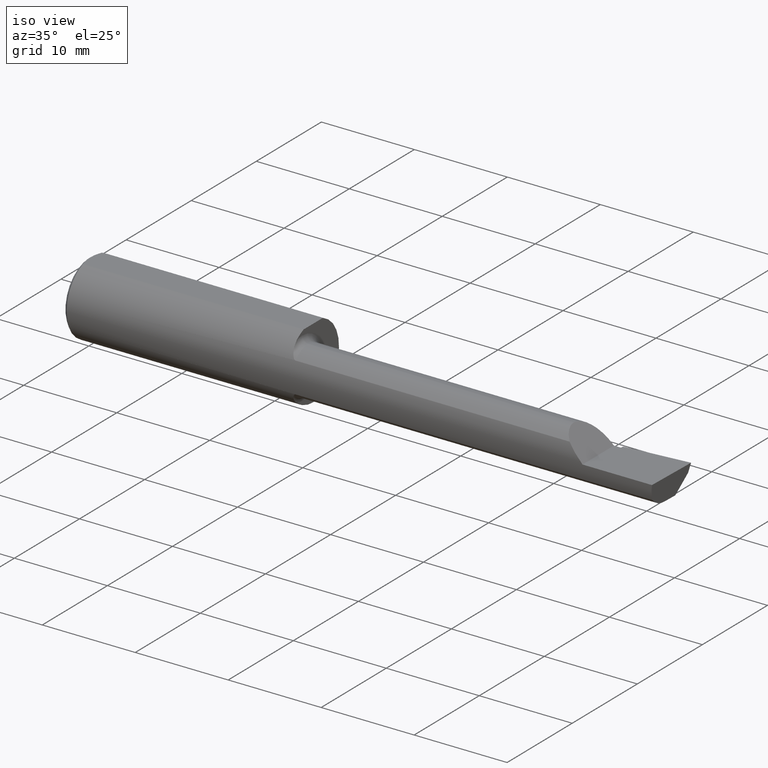
[diagram: clean part render]
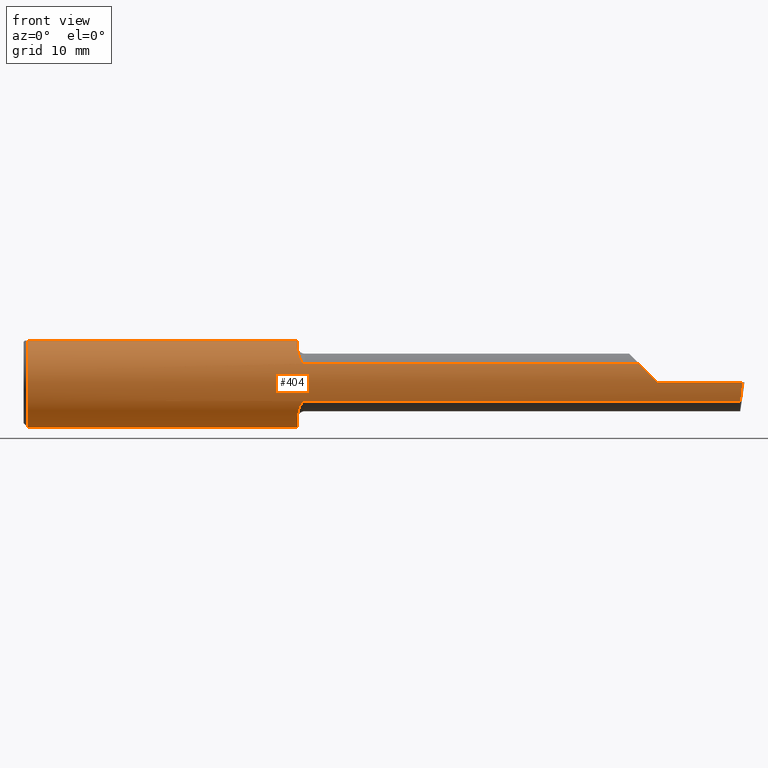
[diagram: tour spotlight — one face highlighted and labeled with its STEP entity id]
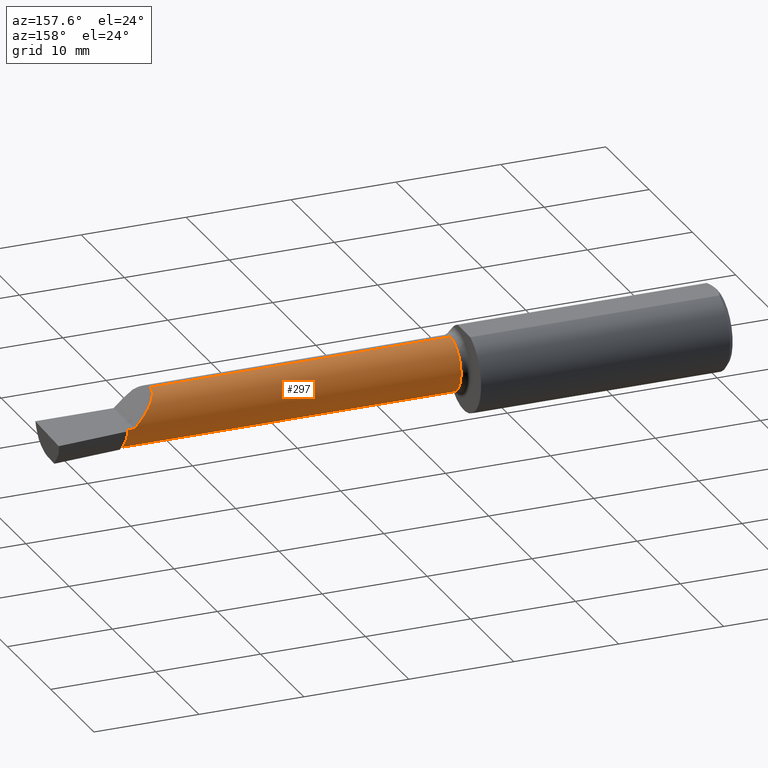
[diagram: tour spotlight — one face highlighted and labeled with its STEP entity id]
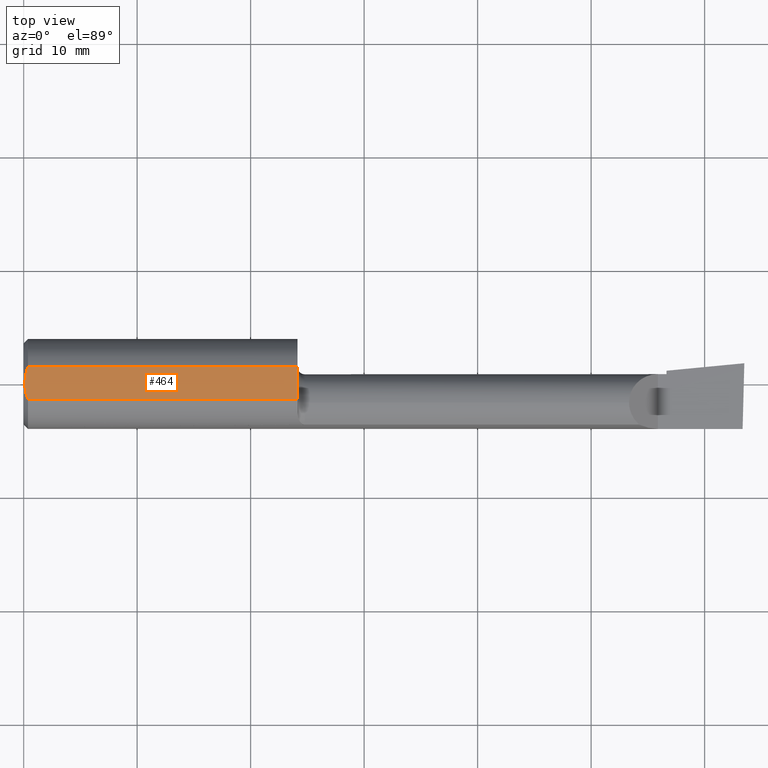
[diagram: tour spotlight — one face highlighted and labeled with its STEP entity id]
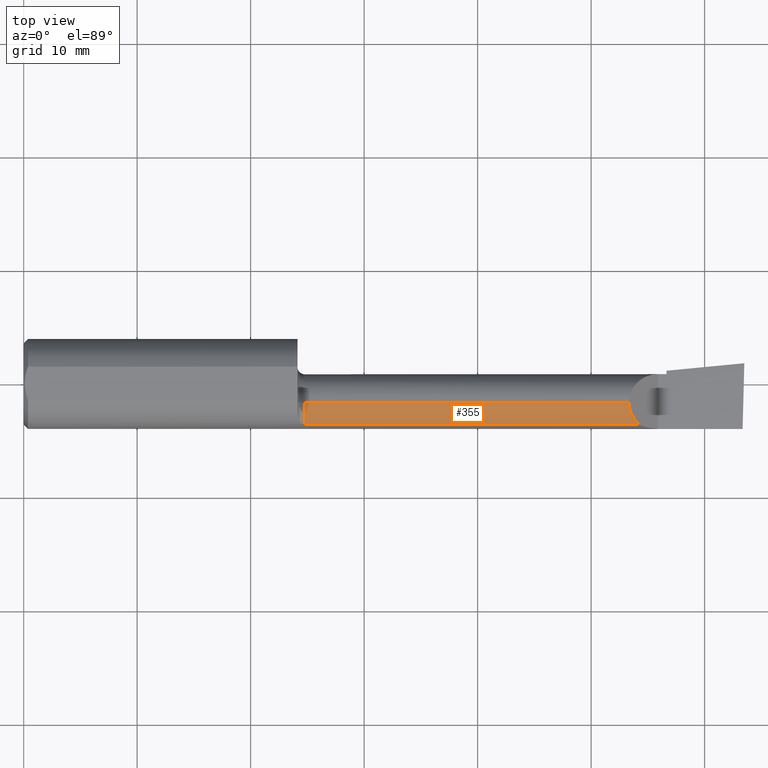
[diagram: tour spotlight — one face highlighted and labeled with its STEP entity id]
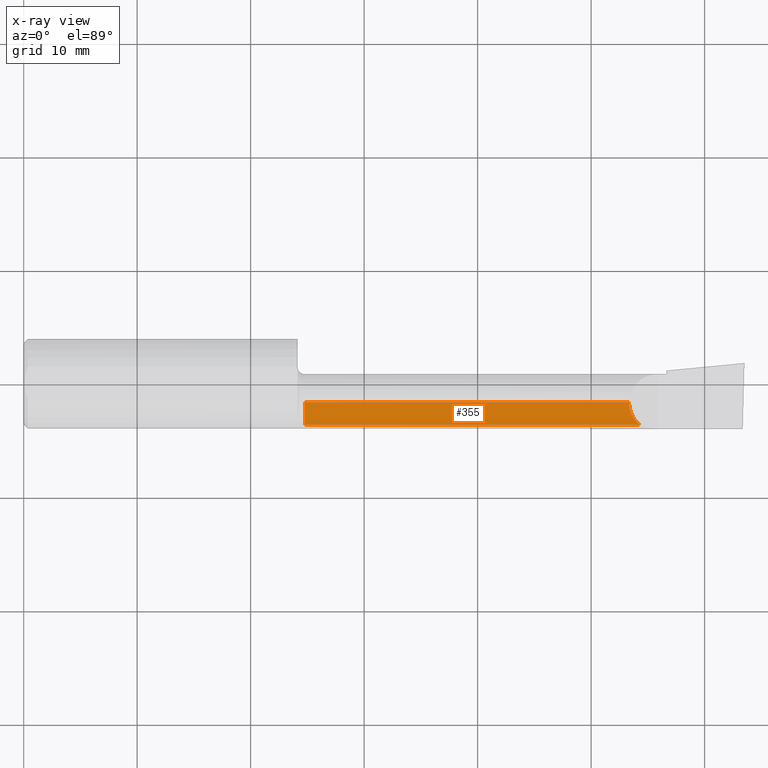
[diagram: x-ray of the same camera — body ghosted, this tour face saturated]
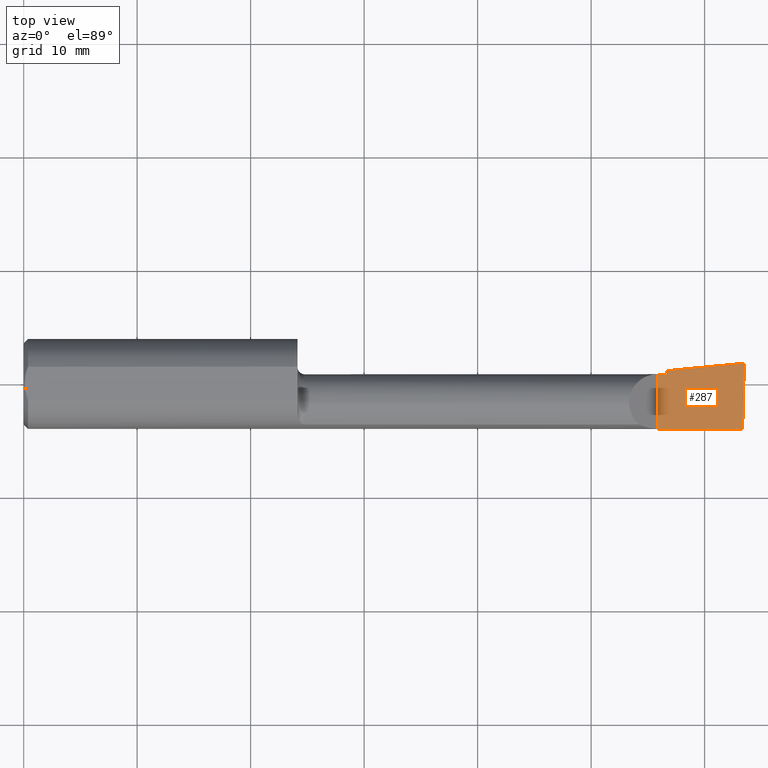
[diagram: tour spotlight — one face highlighted and labeled with its STEP entity id]
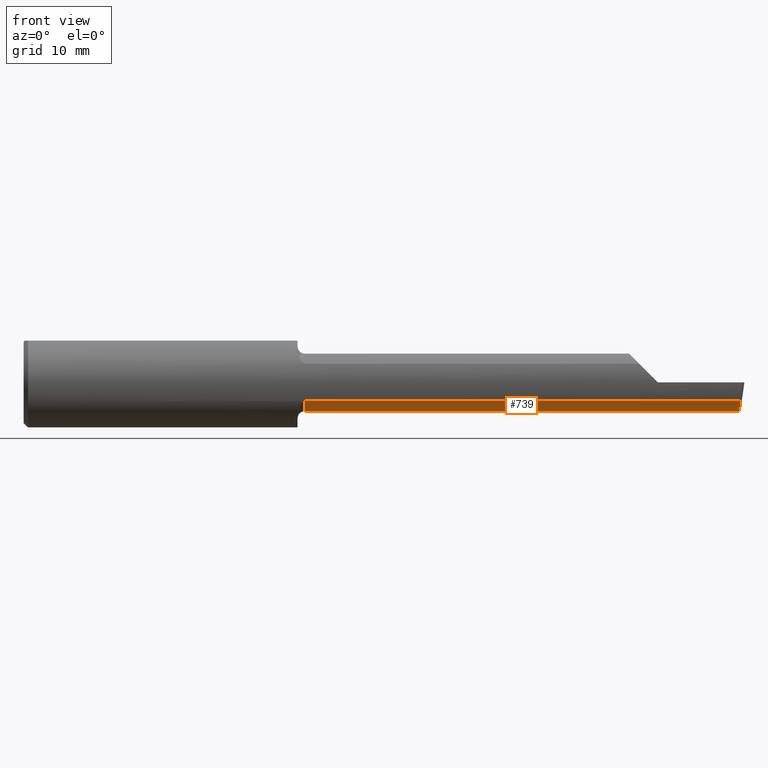
[diagram: tour spotlight — one face highlighted and labeled with its STEP entity id]
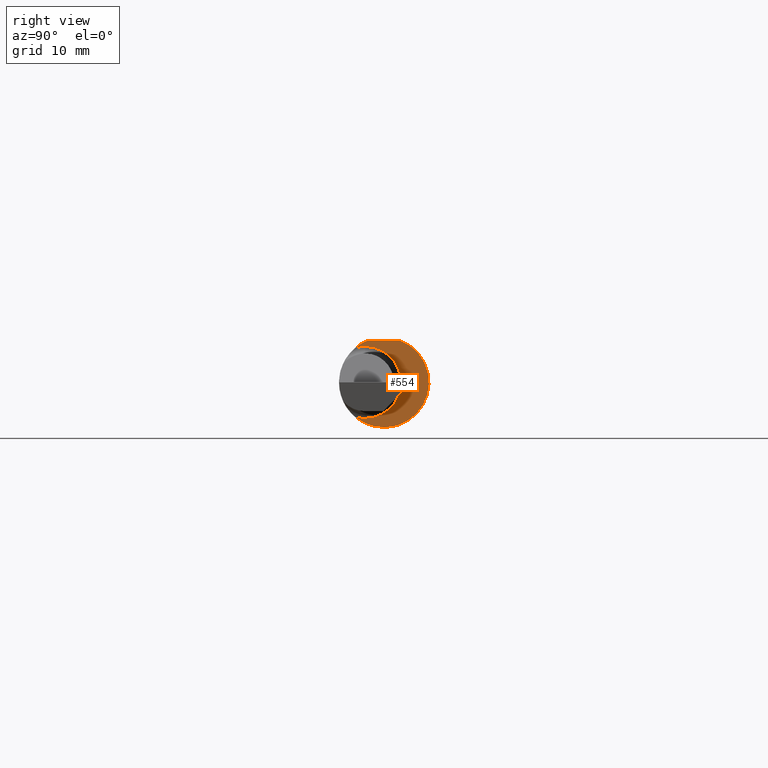
[diagram: tour spotlight — one face highlighted and labeled with its STEP entity id]
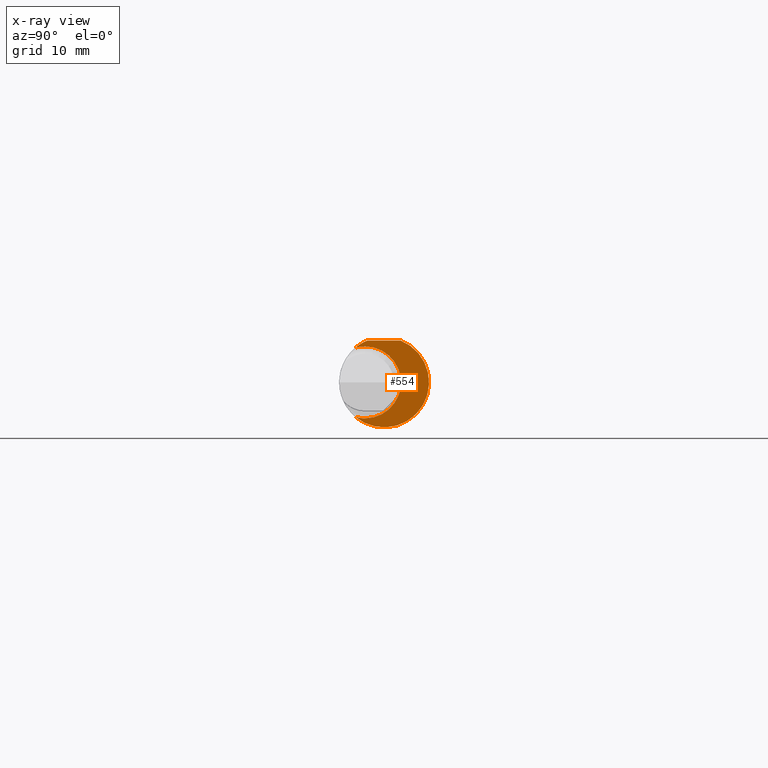
[diagram: x-ray of the same camera — body ghosted, this tour face saturated]
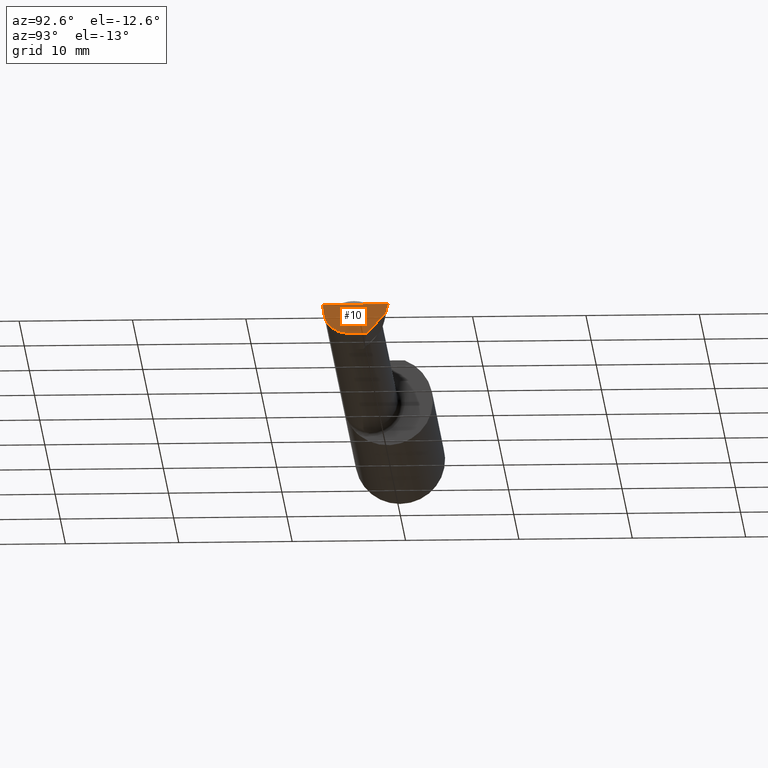
[diagram: tour spotlight — one face highlighted and labeled with its STEP entity id]
A machine part: a face-by-face anatomy tour. The part has 21 B-rep faces; the first image is the clean iso view, then the 8 largest visible faces are spotlighted one at a time (largest first), each with its STEP entity span.

Face 1 — front view, entity #404. In plain terms, the highlighted cylindrical surface (partial cylindrical patch) has radius 3.9649 mm, axis along (-1, -0, -0).
Definition (entity closure, byte-faithful):
#4 = CARTESIAN_POINT ( 'NONE',  ( 0.9717256991359958240, -0.1417275062431947175, -0.06543227863119793764 ) ) ;
#17 = ORIENTED_EDGE ( 'NONE', *, *, #89, .F. ) ;
#21 = CARTESIAN_POINT ( 'NONE',  ( 0.9586820903407829997, -0.1330572531291642768, -0.08183785561185233370 ) ) ;
#27 = CARTESIAN_POINT ( 'NONE',  ( 2.491270569402206814, -0.1560999999999999888, -0.02246288137099515872 ) ) ;
#29 = CARTESIAN_POINT ( 'NONE',  ( 2.486434241799652778, -0.1419939393939394223, -0.06484544066771577575 ) ) ;
#35 = EDGE_CURVE ( 'NONE', #301, #141, #157, .T. ) ;
#42 = CARTESIAN_POINT ( 'NONE',  ( 0.01499999999999999424, 0.000000000000000000, -0.1560999999999999888 ) ) ;
#46 = CIRCLE ( 'NONE', #651, 0.1560999999999999888 ) ;
#50 = EDGE_CURVE ( 'NONE', #660, #640, #114, .T. ) ;
#54 = CARTESIAN_POINT ( 'NONE',  ( 0.9520405068644911539, -0.1180407066556271450, 0.1023492120876694778 ) ) ;
#61 = CARTESIAN_POINT ( 'NONE',  ( 0.9749999999999999778, -0.1419939393939395333, -0.06484544066771551207 ) ) ;
#62 = DIRECTION ( 'NONE',  ( -1.000000000000000000, -0.000000000000000000, -0.000000000000000000 ) ) ;
#66 = EDGE_CURVE ( 'NONE', #488, #605, #568, .T. ) ;
#69 = LINE ( 'NONE', #702, #411 ) ;
#74 = LINE ( 'NONE', #580, #281 ) ;
#75 = CARTESIAN_POINT ( 'NONE',  ( 0.9749999999999999778, -0.1419939393939395333, -0.06484544066771551207 ) ) ;
#82 = CARTESIAN_POINT ( 'NONE',  ( 2.486434241799652778, -0.1419939393939394223, -0.06484544066771577575 ) ) ;
#89 = EDGE_CURVE ( 'NONE', #321, #622, #509, .T. ) ;
#94 = CYLINDRICAL_SURFACE ( 'NONE', #591, 0.1560999999999999888 ) ;
#101 = CARTESIAN_POINT ( 'NONE',  ( 0.9630170922746255080, -0.1374043365808048089, 0.07413505991998627087 ) ) ;
#102 = CARTESIAN_POINT ( 'NONE',  ( 1.602499999999999813, -0.1419939393939394223, -0.06484544066771577575 ) ) ;
#111 = CARTESIAN_POINT ( 'NONE',  ( 0.01499999999999999424, 0.000000000000000000, 0.000000000000000000 ) ) ;
#114 = LINE ( 'NONE', #218, #635 ) ;
#121 = CARTESIAN_POINT ( 'NONE',  ( 0.9733182172575656210, -0.1419939393939396166, -0.06484544066771549820 ) ) ;
#122 = ORIENTED_EDGE ( 'NONE', *, *, #50, .F. ) ;
#123 = CARTESIAN_POINT ( 'NONE',  ( 0.01499999999999999424, -0.05756040305626774350, 0.1451000000000000068 ) ) ;
#128 = DIRECTION ( 'NONE',  ( -1.000000000000000000, -0.000000000000000000, -0.000000000000000000 ) ) ;
#138 = VERTEX_POINT ( 'NONE', #273 ) ;
#141 = VERTEX_POINT ( 'NONE', #619 ) ;
#143 = EDGE_CURVE ( 'NONE', #176, #640, #514, .T. ) ;
#144 = CARTESIAN_POINT ( 'NONE',  ( 2.494029609882220111, -0.1561000000000000165, 6.889038570631858091E-17 ) ) ;
#152 = CARTESIAN_POINT ( 'NONE',  ( 0.000000000000000000, 0.000000000000000000, 0.000000000000000000 ) ) ;
#157 = LINE ( 'NONE', #730, #662 ) ;
#160 = CARTESIAN_POINT ( 'NONE',  ( 0.9678084285893293615, -0.1404263024719113739, 0.06818548243543413878 ) ) ;
#162 = CARTESIAN_POINT ( 'NONE',  ( 0.9586659046592507227, -0.1330436853938333774, 0.08186319721956611395 ) ) ;
#164 = CARTESIAN_POINT ( 'NONE',  ( 0.9499999999999998446, -0.1044500923568691536, 0.1161894481365068482 ) ) ;
#166 = CARTESIAN_POINT ( 'NONE',  ( 2.200000000000000178, -0.1560999999999999888, 9.797174393178826150E-17 ) ) ;
#171 = DIRECTION ( 'NONE',  ( 0.000000000000000000, 0.000000000000000000, -1.000000000000000000 ) ) ;
#176 = VERTEX_POINT ( 'NONE', #578 ) ;
#183 = CARTESIAN_POINT ( 'NONE',  ( 0.9565900107095250959, -0.1296703571699489577, -0.08713627291423967081 ) ) ;
#204 = VERTEX_POINT ( 'NONE', #351 ) ;
#207 = ORIENTED_EDGE ( 'NONE', *, *, #676, .T. ) ;
#214 = EDGE_CURVE ( 'NONE', #301, #488, #590, .T. ) ;
#218 = CARTESIAN_POINT ( 'NONE',  ( 1.602499999999999813, -0.1419939393939394223, 0.06484544066771577575 ) ) ;
#219 = CARTESIAN_POINT ( 'NONE',  ( 0.9689884841392603088, -0.1409410548628160786, 0.06710952210203005586 ) ) ;
#220 = CARTESIAN_POINT ( 'NONE',  ( 2.135154559332283597, -0.1419939393939393946, 0.06484544066771577575 ) ) ;
#222 = CARTESIAN_POINT ( 'NONE',  ( 0.9499999999999999556, 0.000000000000000000, 0.000000000000000000 ) ) ;
#229 = CARTESIAN_POINT ( 'NONE',  ( 0.9689870864409554363, -0.1409404987250980901, -0.06711069163632675527 ) ) ;
#231 = ORIENTED_EDGE ( 'NONE', *, *, #410, .F. ) ;
#242 = AXIS2_PLACEMENT_3D ( 'NONE', #111, #560, #285 ) ;
#257 = ORIENTED_EDGE ( 'NONE', *, *, #502, .F. ) ;
#264 = EDGE_CURVE ( 'NONE', #622, #634, #457, .T. ) ;
#267 = CARTESIAN_POINT ( 'NONE',  ( 0.9646665162895929901, -0.1387430930441310994, 0.07158177069671466108 ) ) ;
#273 = CARTESIAN_POINT ( 'NONE',  ( 0.9499999999999999556, -0.09941818181818204425, 0.1203463132961159199 ) ) ;
#275 = DIRECTION ( 'NONE',  ( 1.000000000000000000, 0.000000000000000000, 0.000000000000000000 ) ) ;
#281 = VECTOR ( 'NONE', #128, 39.37007874015748143 ) ;
#285 = DIRECTION ( 'NONE',  ( 0.000000000000000000, 0.000000000000000000, 1.000000000000000000 ) ) ;
#292 = DIRECTION ( 'NONE',  ( 0.000000000000000000, 0.000000000000000000, 1.000000000000000000 ) ) ;
#294 = DIRECTION ( 'NONE',  ( -1.000000000000000000, -0.000000000000000000, -0.000000000000000000 ) ) ;
#301 = VERTEX_POINT ( 'NONE', #549 ) ;
#308 = CARTESIAN_POINT ( 'NONE',  ( 2.488699611492194208, -0.1513252362624135372, -0.04441242967472189968 ) ) ;
#309 = ORIENTED_EDGE ( 'NONE', *, *, #264, .F. ) ;
#321 = VERTEX_POINT ( 'NONE', #29 ) ;
#338 = CARTESIAN_POINT ( 'NONE',  ( 0.9717277934124318728, -0.1417279534125324980, 0.06543130843947118913 ) ) ;
#341 = VECTOR ( 'NONE', #678, 39.37007874015748143 ) ;
#350 = DIRECTION ( 'NONE',  ( 1.000000000000000000, 0.000000000000000000, 0.000000000000000000 ) ) ;
#351 = CARTESIAN_POINT ( 'NONE',  ( 0.9499999999999999556, -0.05756040305626776432, 0.1451000000000000068 ) ) ;
#358 = CARTESIAN_POINT ( 'NONE',  ( 0.9499999999999999556, -0.09941818181818204425, -0.1203463132961159199 ) ) ;
#359 = EDGE_CURVE ( 'NONE', #321, #413, #596, .T. ) ;
#390 = CARTESIAN_POINT ( 'NONE',  ( 0.9504151557116665705, -0.1091772789608306815, 0.1117554983051641249 ) ) ;
#394 = CARTESIAN_POINT ( 'NONE',  ( 2.177537118629004453, -0.1560999999999999333, 0.02246288137099517260 ) ) ;
#404 = ADVANCED_FACE ( 'NONE', ( #652 ), #94, .T. ) ;
#410 = EDGE_CURVE ( 'NONE', #634, #141, #46, .T. ) ;
#411 = VECTOR ( 'NONE', #294, 39.37007874015748143 ) ;
#413 = VERTEX_POINT ( 'NONE', #144 ) ;
#415 = CARTESIAN_POINT ( 'NONE',  ( 0.9678037441589156797, -0.1404244429940955385, -0.06818941713933145132 ) ) ;
#419 = CIRCLE ( 'NONE', #701, 0.1560999999999999888 ) ;
#426 = DIRECTION ( 'NONE',  ( 0.000000000000000000, 0.000000000000000000, -1.000000000000000000 ) ) ;
#435 = CARTESIAN_POINT ( 'NONE',  ( 2.494029609882220111, -0.1561000000000000165, 6.889038570631858091E-17 ) ) ;
#442 = CARTESIAN_POINT ( 'NONE',  ( 0.9532624648106053922, -0.1222000088982463373, 0.09733625715976082504 ) ) ;
#457 = B_SPLINE_CURVE_WITH_KNOTS ( 'NONE', 3,
 ( #75, #121, #4, #229, #415, #690, #697, #21, #183, #462, #516, #584, #693, #358 ),
 .UNSPECIFIED., .F., .F.,
 ( 4, 2, 2, 2, 2, 2, 4 ),
 ( 1.961289441104657001E-07, 0.0001258819157032009788, 0.0002515677024622915269, 0.0005029392759804715389, 0.001005682423016836333, 0.001508425570053200911, 0.002011168717089565922 ),
 .UNSPECIFIED. ) ;
#462 = CARTESIAN_POINT ( 'NONE',  ( 0.9532640331608028816, -0.1222037927935209767, -0.09733121088759337514 ) ) ;
#471 = ORIENTED_EDGE ( 'NONE', *, *, #35, .T. ) ;
#475 = ORIENTED_EDGE ( 'NONE', *, *, #66, .F. ) ;
#483 = CARTESIAN_POINT ( 'NONE',  ( 0.9499999999999999556, 0.000000000000000000, 0.000000000000000000 ) ) ;
#488 = VERTEX_POINT ( 'NONE', #42 ) ;
#494 = ORIENTED_EDGE ( 'NONE', *, *, #718, .T. ) ;
#502 = EDGE_CURVE ( 'NONE', #138, #660, #725, .T. ) ;
#509 = LINE ( 'NONE', #102, #341 ) ;
#514 =( BOUNDED_CURVE ( )  B_SPLINE_CURVE ( 3, ( #166, #394, #621, #220 ),
 .UNSPECIFIED., .F., .T. ) 
 B_SPLINE_CURVE_WITH_KNOTS ( ( 4, 4 ),
 ( 4.712388980384689674, 5.140782042693055054 ),
 .UNSPECIFIED. ) 
 CURVE ( )  GEOMETRIC_REPRESENTATION_ITEM ( )  RATIONAL_B_SPLINE_CURVE ( ( 1.000000000000000000, 0.9847649979006014576, 0.9847649979006014576, 1.000000000000000000 ) ) 
 REPRESENTATION_ITEM ( '' )  );
#516 = CARTESIAN_POINT ( 'NONE',  ( 0.9520639438348809103, -0.1181307192064764700, -0.1022448908112565669 ) ) ;
#522 = EDGE_LOOP ( 'NONE', ( #17, #553, #207, #704, #122, #257, #665, #494, #475, #649, #471, #231, #309 ) ) ;
#549 = CARTESIAN_POINT ( 'NONE',  ( 0.01499999999999999424, 0.05756040305626779902, 0.1450999999999999512 ) ) ;
#553 = ORIENTED_EDGE ( 'NONE', *, *, #359, .T. ) ;
#560 = DIRECTION ( 'NONE',  ( -1.000000000000000000, -0.000000000000000000, -0.000000000000000000 ) ) ;
#561 = CARTESIAN_POINT ( 'NONE',  ( 0.9565906554296058628, -0.1296720675120679456, 0.08713405786343407511 ) ) ;
#568 = CIRCLE ( 'NONE', #242, 0.1560999999999999888 ) ;
#573 = CARTESIAN_POINT ( 'NONE',  ( 0.9499999999999999556, -0.09941818181818204425, -0.1203463132961159199 ) ) ;
#578 = CARTESIAN_POINT ( 'NONE',  ( 2.200000000000000178, -0.1560999999999999888, 9.797174393178826150E-17 ) ) ;
#580 = CARTESIAN_POINT ( 'NONE',  ( 3.121792066109142165E-32, -0.1560999999999999333, 3.155924005931204823E-16 ) ) ;
#584 = CARTESIAN_POINT ( 'NONE',  ( 0.9504281348370819948, -0.1092850169809858607, -0.1116497630123360202 ) ) ;
#590 = CIRCLE ( 'NONE', #686, 0.1560999999999999888 ) ;
#591 = AXIS2_PLACEMENT_3D ( 'NONE', #152, #595, #663 ) ;
#595 = DIRECTION ( 'NONE',  ( -1.000000000000000000, -0.000000000000000000, -0.000000000000000000 ) ) ;
#596 =( BOUNDED_CURVE ( )  B_SPLINE_CURVE ( 3, ( #82, #308, #27, #435 ),
 .UNSPECIFIED., .F., .T. ) 
 B_SPLINE_CURVE_WITH_KNOTS ( ( 4, 4 ),
 ( 0.9323538202067687131, 1.360746882515134759 ),
 .UNSPECIFIED. ) 
 CURVE ( )  GEOMETRIC_REPRESENTATION_ITEM ( )  RATIONAL_B_SPLINE_CURVE ( ( 1.000000000000000000, 0.9847649979006014576, 0.9847649979006014576, 1.000000000000000000 ) ) 
 REPRESENTATION_ITEM ( '' )  );
#605 = VERTEX_POINT ( 'NONE', #123 ) ;
#615 = CARTESIAN_POINT ( 'NONE',  ( 0.9733282532545943777, -0.1419939393940949923, 0.06484544066737527035 ) ) ;
#619 = CARTESIAN_POINT ( 'NONE',  ( 0.9499999999999999556, 0.05756040305626777820, 0.1450999999999999512 ) ) ;
#621 = CARTESIAN_POINT ( 'NONE',  ( 2.155587570325277369, -0.1513252362624134817, 0.04441242967472187192 ) ) ;
#622 = VERTEX_POINT ( 'NONE', #61 ) ;
#623 = CARTESIAN_POINT ( 'NONE',  ( 0.9499999999999999556, -0.09941818181818204425, 0.1203463132961159199 ) ) ;
#624 = DIRECTION ( 'NONE',  ( 1.000000000000000000, 0.000000000000000000, 0.000000000000000000 ) ) ;
#634 = VERTEX_POINT ( 'NONE', #573 ) ;
#635 = VECTOR ( 'NONE', #275, 39.37007874015748143 ) ;
#637 = CARTESIAN_POINT ( 'NONE',  ( 0.9749999999999999778, -0.1419939393939394223, 0.06484544066771566473 ) ) ;
#638 = EDGE_CURVE ( 'NONE', #204, #138, #419, .T. ) ;
#640 = VERTEX_POINT ( 'NONE', #689 ) ;
#649 = ORIENTED_EDGE ( 'NONE', *, *, #214, .F. ) ;
#651 = AXIS2_PLACEMENT_3D ( 'NONE', #483, #711, #426 ) ;
#652 = FACE_OUTER_BOUND ( 'NONE', #522, .T. ) ;
#660 = VERTEX_POINT ( 'NONE', #637 ) ;
#662 = VECTOR ( 'NONE', #624, 39.37007874015748143 ) ;
#663 = DIRECTION ( 'NONE',  ( 0.000000000000000000, 0.000000000000000000, 1.000000000000000000 ) ) ;
#665 = ORIENTED_EDGE ( 'NONE', *, *, #638, .F. ) ;
#670 = CARTESIAN_POINT ( 'NONE',  ( 0.9749999999999999778, -0.1419939393939394223, 0.06484544066771566473 ) ) ;
#676 = EDGE_CURVE ( 'NONE', #413, #176, #74, .T. ) ;
#678 = DIRECTION ( 'NONE',  ( -1.000000000000000000, -0.000000000000000000, -0.000000000000000000 ) ) ;
#685 = CARTESIAN_POINT ( 'NONE',  ( 0.01499999999999999424, 0.000000000000000000, 0.000000000000000000 ) ) ;
#686 = AXIS2_PLACEMENT_3D ( 'NONE', #685, #62, #292 ) ;
#689 = CARTESIAN_POINT ( 'NONE',  ( 2.135154559332283597, -0.1419939393939393946, 0.06484544066771577575 ) ) ;
#690 = CARTESIAN_POINT ( 'NONE',  ( 0.9646509797163482780, -0.1387334617349067767, -0.07160083655282331594 ) ) ;
#693 = CARTESIAN_POINT ( 'NONE',  ( 0.9500000000000000666, -0.1044772303701487354, -0.1161670294028995382 ) ) ;
#697 = CARTESIAN_POINT ( 'NONE',  ( 0.9629965619026877865, -0.1373850824029526907, -0.07416982835688724907 ) ) ;
#701 = AXIS2_PLACEMENT_3D ( 'NONE', #222, #350, #171 ) ;
#702 = CARTESIAN_POINT ( 'NONE',  ( 0.000000000000000000, -0.05756040305626774350, 0.1451000000000000068 ) ) ;
#704 = ORIENTED_EDGE ( 'NONE', *, *, #143, .T. ) ;
#711 = DIRECTION ( 'NONE',  ( 1.000000000000000000, 0.000000000000000000, 0.000000000000000000 ) ) ;
#718 = EDGE_CURVE ( 'NONE', #204, #605, #69, .T. ) ;
#725 = B_SPLINE_CURVE_WITH_KNOTS ( 'NONE', 3,
 ( #623, #164, #390, #54, #442, #561, #162, #101, #267, #160, #219, #338, #615, #670 ),
 .UNSPECIFIED., .F., .F.,
 ( 4, 2, 2, 2, 2, 2, 4 ),
 ( 0.0001856976868807124587, 0.0006805519038525597968, 0.001175406120824407270, 0.001670260337796254527, 0.001917687446282178264, 0.002041401000525140241, 0.002165114554768101784 ),
 .UNSPECIFIED. ) ;
#730 = CARTESIAN_POINT ( 'NONE',  ( 0.000000000000000000, 0.05756040305626779902, 0.1450999999999999512 ) ) ;

Face 2 — auxiliary view, entity #297. In plain terms, the highlighted cylindrical surface (edge-blend (fillet) strip) has radius 2.5375 mm, axis along (-1, -0, -0).
Definition (entity closure, byte-faithful):
#18 = AXIS2_PLACEMENT_3D ( 'NONE', #97, #707, #608 ) ;
#45 = VERTEX_POINT ( 'NONE', #333 ) ;
#49 = CARTESIAN_POINT ( 'NONE',  ( 0.000000000000000000, -0.06599999999999998923, -0.09989999999999993330 ) ) ;
#96 = VERTEX_POINT ( 'NONE', #278 ) ;
#97 = CARTESIAN_POINT ( 'NONE',  ( 0.000000000000000000, -0.06599999999999998923, 0.000000000000000000 ) ) ;
#105 = DIRECTION ( 'NONE',  ( -1.000000000000000000, -0.000000000000000000, -0.000000000000000000 ) ) ;
#116 = EDGE_CURVE ( 'NONE', #96, #379, #447, .T. ) ;
#119 = CIRCLE ( 'NONE', #441, 0.09990000000000000269 ) ;
#126 = CARTESIAN_POINT ( 'NONE',  ( 2.229999999999999982, -0.06599999999999998923, 0.000000000000000000 ) ) ;
#131 = CARTESIAN_POINT ( 'NONE',  ( 2.229999999999999982, 0.03390000000000001346, 3.155924005931208275E-16 ) ) ;
#165 = EDGE_CURVE ( 'NONE', #682, #379, #468, .T. ) ;
#177 = EDGE_CURVE ( 'NONE', #45, #271, #408, .T. ) ;
#178 = CARTESIAN_POINT ( 'NONE',  ( 2.229999999999999982, -0.06599999999999998923, -0.09990000000000000269 ) ) ;
#189 = VERTEX_POINT ( 'NONE', #512 ) ;
#194 = CARTESIAN_POINT ( 'NONE',  ( 2.229999999999999982, 0.02031953758082113634, -0.05028864118101816771 ) ) ;
#201 = ORIENTED_EDGE ( 'NONE', *, *, #177, .T. ) ;
#210 = VECTOR ( 'NONE', #105, 39.37007874015748143 ) ;
#263 = EDGE_LOOP ( 'NONE', ( #579, #306, #492, #407, #201, #363, #403, #296 ) ) ;
#271 = VERTEX_POINT ( 'NONE', #412 ) ;
#278 = CARTESIAN_POINT ( 'NONE',  ( 2.229999999999999982, -0.01311981690363728248, -0.08475668844224119869 ) ) ;
#282 = CARTESIAN_POINT ( 'NONE',  ( 2.229999999999999982, -0.06599999999999998923, 0.000000000000000000 ) ) ;
#289 = CARTESIAN_POINT ( 'NONE',  ( 2.100099999999998523, -0.007479934881072251331, 0.09989999999999994718 ) ) ;
#296 = ORIENTED_EDGE ( 'NONE', *, *, #116, .F. ) ;
#297 = ADVANCED_FACE ( 'NONE', ( #312 ), #536, .T. ) ;
#306 = ORIENTED_EDGE ( 'NONE', *, *, #527, .T. ) ;
#312 = FACE_OUTER_BOUND ( 'NONE', #263, .T. ) ;
#315 = CARTESIAN_POINT ( 'NONE',  ( 2.229999999999999982, -0.06599999999999998923, 0.000000000000000000 ) ) ;
#318 = VECTOR ( 'NONE', #696, 39.37007874015748143 ) ;
#330 = CIRCLE ( 'NONE', #456, 0.09989999999999985003 ) ;
#332 = CARTESIAN_POINT ( 'NONE',  ( 0.9749999999999999778, -0.06599999999999997535, -0.09989999999999985003 ) ) ;
#333 = CARTESIAN_POINT ( 'NONE',  ( 2.100099999999998968, -0.06599999999999998923, 0.09989999999999993330 ) ) ;
#345 = EDGE_CURVE ( 'NONE', #189, #533, #330, .T. ) ;
#356 = CARTESIAN_POINT ( 'NONE',  ( 2.100099999999998968, -0.06599999999999998923, 0.09989999999999993330 ) ) ;
#363 = ORIENTED_EDGE ( 'NONE', *, *, #687, .T. ) ;
#379 = VERTEX_POINT ( 'NONE', #194 ) ;
#387 = DIRECTION ( 'NONE',  ( -1.000000000000000000, -0.000000000000000000, -0.000000000000000000 ) ) ;
#403 = ORIENTED_EDGE ( 'NONE', *, *, #165, .T. ) ;
#407 = ORIENTED_EDGE ( 'NONE', *, *, #496, .F. ) ;
#408 =( BOUNDED_CURVE ( )  B_SPLINE_CURVE ( 3, ( #356, #289, #642, #524 ),
 .UNSPECIFIED., .F., .T. ) 
 B_SPLINE_CURVE_WITH_KNOTS ( ( 4, 4 ),
 ( 0.000000000000000000, 1.570796326794896114 ),
 .UNSPECIFIED. ) 
 CURVE ( )  GEOMETRIC_REPRESENTATION_ITEM ( )  RATIONAL_B_SPLINE_CURVE ( ( 1.000000000000000000, 0.8047378541243650485, 0.8047378541243650485, 1.000000000000000000 ) ) 
 REPRESENTATION_ITEM ( '' )  );
#412 = CARTESIAN_POINT ( 'NONE',  ( 2.200000000000000178, 0.03389999999999990937, 9.797174393178826150E-17 ) ) ;
#430 = EDGE_CURVE ( 'NONE', #96, #644, #119, .T. ) ;
#431 = DIRECTION ( 'NONE',  ( 0.000000000000000000, 0.000000000000000000, 1.000000000000000000 ) ) ;
#441 = AXIS2_PLACEMENT_3D ( 'NONE', #315, #541, #431 ) ;
#447 = CIRCLE ( 'NONE', #540, 0.09989999999999993330 ) ;
#450 = LINE ( 'NONE', #49, #210 ) ;
#456 = AXIS2_PLACEMENT_3D ( 'NONE', #532, #592, #656 ) ;
#468 = CIRCLE ( 'NONE', #526, 0.09990000000000000269 ) ;
#492 = ORIENTED_EDGE ( 'NONE', *, *, #345, .F. ) ;
#495 = LINE ( 'NONE', #677, #572 ) ;
#496 = EDGE_CURVE ( 'NONE', #45, #189, #495, .T. ) ;
#501 = DIRECTION ( 'NONE',  ( 1.000000000000000000, 0.000000000000000000, 0.000000000000000000 ) ) ;
#512 = CARTESIAN_POINT ( 'NONE',  ( 0.9749999999999999778, -0.06599999999999998923, 0.09989999999999985003 ) ) ;
#515 = LINE ( 'NONE', #641, #318 ) ;
#524 = CARTESIAN_POINT ( 'NONE',  ( 2.200000000000000178, 0.03389999999999990937, 9.797174393178826150E-17 ) ) ;
#526 = AXIS2_PLACEMENT_3D ( 'NONE', #126, #633, #588 ) ;
#527 = EDGE_CURVE ( 'NONE', #644, #533, #450, .T. ) ;
#532 = CARTESIAN_POINT ( 'NONE',  ( 0.9749999999999999778, -0.06599999999999998923, 0.000000000000000000 ) ) ;
#533 = VERTEX_POINT ( 'NONE', #332 ) ;
#536 = CYLINDRICAL_SURFACE ( 'NONE', #18, 0.09989999999999993330 ) ;
#540 = AXIS2_PLACEMENT_3D ( 'NONE', #282, #501, #681 ) ;
#541 = DIRECTION ( 'NONE',  ( -1.000000000000000000, -0.000000000000000000, -0.000000000000000000 ) ) ;
#572 = VECTOR ( 'NONE', #387, 39.37007874015748143 ) ;
#579 = ORIENTED_EDGE ( 'NONE', *, *, #430, .T. ) ;
#588 = DIRECTION ( 'NONE',  ( 0.000000000000000000, 0.000000000000000000, 1.000000000000000000 ) ) ;
#592 = DIRECTION ( 'NONE',  ( -1.000000000000000000, -0.000000000000000000, -0.000000000000000000 ) ) ;
#608 = DIRECTION ( 'NONE',  ( 0.000000000000000000, 0.000000000000000000, 1.000000000000000000 ) ) ;
#633 = DIRECTION ( 'NONE',  ( -1.000000000000000000, -0.000000000000000000, -0.000000000000000000 ) ) ;
#641 = CARTESIAN_POINT ( 'NONE',  ( 3.121792066109142165E-32, 0.03389999999999993019, 3.155924005931204823E-16 ) ) ;
#642 = CARTESIAN_POINT ( 'NONE',  ( 2.141479934881071578, 0.03389999999999989549, 0.05852006511892780122 ) ) ;
#644 = VERTEX_POINT ( 'NONE', #178 ) ;
#656 = DIRECTION ( 'NONE',  ( 0.000000000000000000, 0.000000000000000000, 1.000000000000000000 ) ) ;
#677 = CARTESIAN_POINT ( 'NONE',  ( 0.000000000000000000, -0.06599999999999998923, 0.09989999999999993330 ) ) ;
#681 = DIRECTION ( 'NONE',  ( 0.000000000000000000, 0.000000000000000000, 1.000000000000000000 ) ) ;
#682 = VERTEX_POINT ( 'NONE', #131 ) ;
#687 = EDGE_CURVE ( 'NONE', #271, #682, #515, .T. ) ;
#696 = DIRECTION ( 'NONE',  ( 1.000000000000000000, 0.000000000000000000, 0.000000000000000000 ) ) ;
#707 = DIRECTION ( 'NONE',  ( -1.000000000000000000, -0.000000000000000000, -0.000000000000000000 ) ) ;

Face 3 — top view, entity #464. In plain terms, the highlighted planar face has unit normal (0, -0, -1).
Definition (entity closure, byte-faithful):
#1 = VECTOR ( 'NONE', #458, 39.37007874015748143 ) ;
#6 = LINE ( 'NONE', #12, #1 ) ;
#8 = CARTESIAN_POINT ( 'NONE',  ( 0.004000000000000238608, 1.884449684559922719E-17, 0.1450999999999999790 ) ) ;
#12 = CARTESIAN_POINT ( 'NONE',  ( 0.9499999999999999556, 0.2061000000000000332, 0.1450999999999999512 ) ) ;
#35 = EDGE_CURVE ( 'NONE', #301, #141, #157, .T. ) ;
#36 = PLANE ( 'NONE',  #669 ) ;
#53 = CARTESIAN_POINT ( 'NONE',  ( 0.01499999999999999424, 0.05756040305626779902, 0.1450999999999999512 ) ) ;
#69 = LINE ( 'NONE', #702, #411 ) ;
#71 = EDGE_CURVE ( 'NONE', #244, #301, #531, .T. ) ;
#123 = CARTESIAN_POINT ( 'NONE',  ( 0.01499999999999999424, -0.05756040305626774350, 0.1451000000000000068 ) ) ;
#141 = VERTEX_POINT ( 'NONE', #619 ) ;
#155 = CARTESIAN_POINT ( 'NONE',  ( 0.004000000000000188301, -0.009851916903761191377, 0.1450999999999999512 ) ) ;
#157 = LINE ( 'NONE', #730, #662 ) ;
#167 = CARTESIAN_POINT ( 'NONE',  ( 0.01161840624095555018, -0.04838974479540033430, 0.1451000000000000345 ) ) ;
#199 = ORIENTED_EDGE ( 'NONE', *, *, #718, .F. ) ;
#204 = VERTEX_POINT ( 'NONE', #351 ) ;
#205 = CARTESIAN_POINT ( 'NONE',  ( 0.008818052469297050708, -0.03886761757380372689, 0.1451000000000000068 ) ) ;
#244 = VERTEX_POINT ( 'NONE', #8 ) ;
#259 = CARTESIAN_POINT ( 'NONE',  ( 2.500000000000000000, 0.2061000000000000332, 0.1450999999999999512 ) ) ;
#261 = B_SPLINE_CURVE_WITH_KNOTS ( 'NONE', 3,
 ( #680, #167, #205, #445, #155, #674 ),
 .UNSPECIFIED., .F., .F.,
 ( 4, 2, 4 ),
 ( 0.001402484879066372495, 0.002145844412013350570, 0.002889203944960327779 ),
 .UNSPECIFIED. ) ;
#268 = ORIENTED_EDGE ( 'NONE', *, *, #577, .F. ) ;
#274 = DIRECTION ( 'NONE',  ( 0.000000000000000000, -1.656870447394628111E-16, -1.000000000000000000 ) ) ;
#294 = DIRECTION ( 'NONE',  ( -1.000000000000000000, -0.000000000000000000, -0.000000000000000000 ) ) ;
#301 = VERTEX_POINT ( 'NONE', #549 ) ;
#349 = ORIENTED_EDGE ( 'NONE', *, *, #628, .F. ) ;
#351 = CARTESIAN_POINT ( 'NONE',  ( 0.9499999999999999556, -0.05756040305626776432, 0.1451000000000000068 ) ) ;
#411 = VECTOR ( 'NONE', #294, 39.37007874015748143 ) ;
#445 = CARTESIAN_POINT ( 'NONE',  ( 0.005011318927233133005, -0.01959047621504276041, 0.1450999999999999790 ) ) ;
#446 = CARTESIAN_POINT ( 'NONE',  ( 0.008823987512428459190, 0.03887788046871686748, 0.1450999999999999790 ) ) ;
#458 = DIRECTION ( 'NONE',  ( 0.000000000000000000, -1.000000000000000000, 1.656870447394628111E-16 ) ) ;
#464 = ADVANCED_FACE ( 'NONE', ( #546 ), #36, .F. ) ;
#497 = CARTESIAN_POINT ( 'NONE',  ( 0.01158831187866387301, 0.04830813087846569376, 0.1450999999999999512 ) ) ;
#506 = ORIENTED_EDGE ( 'NONE', *, *, #71, .F. ) ;
#531 = B_SPLINE_CURVE_WITH_KNOTS ( 'NONE', 3,
 ( #562, #740, #613, #446, #497, #53 ),
 .UNSPECIFIED., .F., .F.,
 ( 4, 2, 4 ),
 ( 0.002889203944960327779, 0.003632851267233511670, 0.004376498589506695562 ),
 .UNSPECIFIED. ) ;
#546 = FACE_OUTER_BOUND ( 'NONE', #724, .T. ) ;
#549 = CARTESIAN_POINT ( 'NONE',  ( 0.01499999999999999424, 0.05756040305626779902, 0.1450999999999999512 ) ) ;
#555 = DIRECTION ( 'NONE',  ( 0.000000000000000000, 1.000000000000000000, -1.656870447394628111E-16 ) ) ;
#562 = CARTESIAN_POINT ( 'NONE',  ( 0.004000000000000238608, 1.884449684559922719E-17, 0.1450999999999999790 ) ) ;
#577 = EDGE_CURVE ( 'NONE', #605, #244, #261, .T. ) ;
#605 = VERTEX_POINT ( 'NONE', #123 ) ;
#613 = CARTESIAN_POINT ( 'NONE',  ( 0.005030132703184950031, 0.01970541148932063169, 0.1451000000000000068 ) ) ;
#619 = CARTESIAN_POINT ( 'NONE',  ( 0.9499999999999999556, 0.05756040305626777820, 0.1450999999999999512 ) ) ;
#624 = DIRECTION ( 'NONE',  ( 1.000000000000000000, 0.000000000000000000, 0.000000000000000000 ) ) ;
#628 = EDGE_CURVE ( 'NONE', #141, #204, #6, .T. ) ;
#662 = VECTOR ( 'NONE', #624, 39.37007874015748143 ) ;
#669 = AXIS2_PLACEMENT_3D ( 'NONE', #259, #274, #555 ) ;
#674 = CARTESIAN_POINT ( 'NONE',  ( 0.004000000000000238608, 1.884449684559922719E-17, 0.1450999999999999790 ) ) ;
#680 = CARTESIAN_POINT ( 'NONE',  ( 0.01499999999999999424, -0.05756040305626774350, 0.1451000000000000068 ) ) ;
#702 = CARTESIAN_POINT ( 'NONE',  ( 0.000000000000000000, -0.05756040305626774350, 0.1451000000000000068 ) ) ;
#712 = ORIENTED_EDGE ( 'NONE', *, *, #35, .F. ) ;
#718 = EDGE_CURVE ( 'NONE', #204, #605, #69, .T. ) ;
#724 = EDGE_LOOP ( 'NONE', ( #349, #712, #506, #268, #199 ) ) ;
#730 = CARTESIAN_POINT ( 'NONE',  ( 0.000000000000000000, 0.05756040305626779902, 0.1450999999999999512 ) ) ;
#740 = CARTESIAN_POINT ( 'NONE',  ( 0.004000000000000188301, 0.009855731042683129120, 0.1450999999999999790 ) ) ;

Face 4 — top view, entity #355. An x-ray twin of the same camera follows (body ghosted, this face saturated) — the face is partly hidden behind the body. In plain terms, the highlighted cylindrical surface (edge-blend (fillet) strip) has radius 2.5375 mm, axis along (-1, -0, -0).
Definition (entity closure, byte-faithful):
#45 = VERTEX_POINT ( 'NONE', #333 ) ;
#50 = EDGE_CURVE ( 'NONE', #660, #640, #114, .T. ) ;
#55 = AXIS2_PLACEMENT_3D ( 'NONE', #213, #733, #616 ) ;
#57 = EDGE_CURVE ( 'NONE', #660, #189, #378, .T. ) ;
#76 = ORIENTED_EDGE ( 'NONE', *, *, #50, .T. ) ;
#88 = CARTESIAN_POINT ( 'NONE',  ( 0.000000000000000000, -0.06599999999999998923, 0.000000000000000000 ) ) ;
#114 = LINE ( 'NONE', #218, #635 ) ;
#148 = ORIENTED_EDGE ( 'NONE', *, *, #57, .F. ) ;
#189 = VERTEX_POINT ( 'NONE', #512 ) ;
#190 = FACE_OUTER_BOUND ( 'NONE', #344, .T. ) ;
#213 = CARTESIAN_POINT ( 'NONE',  ( 0.9749999999999999778, -0.06599999999999998923, 0.000000000000000000 ) ) ;
#218 = CARTESIAN_POINT ( 'NONE',  ( 1.602499999999999813, -0.1419939393939394223, 0.06484544066771577575 ) ) ;
#234 = ORIENTED_EDGE ( 'NONE', *, *, #496, .T. ) ;
#235 =( BOUNDED_CURVE ( )  B_SPLINE_CURVE ( 3, ( #251, #487, #491, #255 ),
 .UNSPECIFIED., .F., .T. ) 
 B_SPLINE_CURVE_WITH_KNOTS ( ( 4, 4 ),
 ( 5.418794317430680074, 6.283185307179586232 ),
 .UNSPECIFIED. ) 
 CURVE ( )  GEOMETRIC_REPRESENTATION_ITEM ( )  RATIONAL_B_SPLINE_CURVE ( ( 1.000000000000000000, 0.9386988813357770578, 0.9386988813357770578, 1.000000000000000000 ) ) 
 REPRESENTATION_ITEM ( '' )  );
#251 = CARTESIAN_POINT ( 'NONE',  ( 2.135154559332283597, -0.1419939393939393946, 0.06484544066771577575 ) ) ;
#255 = CARTESIAN_POINT ( 'NONE',  ( 2.100099999999998968, -0.06599999999999998923, 0.09989999999999993330 ) ) ;
#275 = DIRECTION ( 'NONE',  ( 1.000000000000000000, 0.000000000000000000, 0.000000000000000000 ) ) ;
#333 = CARTESIAN_POINT ( 'NONE',  ( 2.100099999999998968, -0.06599999999999998923, 0.09989999999999993330 ) ) ;
#344 = EDGE_LOOP ( 'NONE', ( #437, #234, #148, #76 ) ) ;
#355 = ADVANCED_FACE ( 'NONE', ( #190 ), #370, .T. ) ;
#370 = CYLINDRICAL_SURFACE ( 'NONE', #688, 0.09989999999999993330 ) ;
#377 = EDGE_CURVE ( 'NONE', #640, #45, #235, .T. ) ;
#378 = CIRCLE ( 'NONE', #55, 0.09989999999999985003 ) ;
#387 = DIRECTION ( 'NONE',  ( -1.000000000000000000, -0.000000000000000000, -0.000000000000000000 ) ) ;
#418 = DIRECTION ( 'NONE',  ( -1.000000000000000000, -0.000000000000000000, -0.000000000000000000 ) ) ;
#437 = ORIENTED_EDGE ( 'NONE', *, *, #377, .T. ) ;
#478 = DIRECTION ( 'NONE',  ( 0.000000000000000000, 0.000000000000000000, 1.000000000000000000 ) ) ;
#487 = CARTESIAN_POINT ( 'NONE',  ( 2.112547924827749668, -0.1227037540429563728, 0.08745207517224930227 ) ) ;
#491 = CARTESIAN_POINT ( 'NONE',  ( 2.100099999999998968, -0.09571819601686555601, 0.09989999999999997493 ) ) ;
#495 = LINE ( 'NONE', #677, #572 ) ;
#496 = EDGE_CURVE ( 'NONE', #45, #189, #495, .T. ) ;
#512 = CARTESIAN_POINT ( 'NONE',  ( 0.9749999999999999778, -0.06599999999999998923, 0.09989999999999985003 ) ) ;
#572 = VECTOR ( 'NONE', #387, 39.37007874015748143 ) ;
#616 = DIRECTION ( 'NONE',  ( 0.000000000000000000, 0.000000000000000000, 1.000000000000000000 ) ) ;
#635 = VECTOR ( 'NONE', #275, 39.37007874015748143 ) ;
#637 = CARTESIAN_POINT ( 'NONE',  ( 0.9749999999999999778, -0.1419939393939394223, 0.06484544066771566473 ) ) ;
#640 = VERTEX_POINT ( 'NONE', #689 ) ;
#660 = VERTEX_POINT ( 'NONE', #637 ) ;
#677 = CARTESIAN_POINT ( 'NONE',  ( 0.000000000000000000, -0.06599999999999998923, 0.09989999999999993330 ) ) ;
#688 = AXIS2_PLACEMENT_3D ( 'NONE', #88, #418, #478 ) ;
#689 = CARTESIAN_POINT ( 'NONE',  ( 2.135154559332283597, -0.1419939393939393946, 0.06484544066771577575 ) ) ;
#733 = DIRECTION ( 'NONE',  ( -1.000000000000000000, -0.000000000000000000, -0.000000000000000000 ) ) ;

Face 5 — top view, entity #287. In plain terms, the highlighted planar face has unit normal (-0, 0, -1).
Definition (entity closure, byte-faithful):
#48 = CARTESIAN_POINT ( 'NONE',  ( 2.491576527842699562, -0.2497794236187493022, 6.912943690626119343E-17 ) ) ;
#67 = CARTESIAN_POINT ( 'NONE',  ( 2.200000000000000178, -0.2500000000000000555, 9.797174393178826150E-17 ) ) ;
#68 = ORIENTED_EDGE ( 'NONE', *, *, #397, .F. ) ;
#74 = LINE ( 'NONE', #580, #281 ) ;
#90 = VERTEX_POINT ( 'NONE', #388 ) ;
#106 = LINE ( 'NONE', #48, #316 ) ;
#128 = DIRECTION ( 'NONE',  ( -1.000000000000000000, -0.000000000000000000, -0.000000000000000000 ) ) ;
#131 = CARTESIAN_POINT ( 'NONE',  ( 2.229999999999999982, 0.03390000000000001346, 3.155924005931208275E-16 ) ) ;
#132 = LINE ( 'NONE', #67, #699 ) ;
#134 = EDGE_CURVE ( 'NONE', #413, #432, #106, .T. ) ;
#144 = CARTESIAN_POINT ( 'NONE',  ( 2.494029609882220111, -0.1561000000000000165, 6.889038570631858091E-17 ) ) ;
#176 = VERTEX_POINT ( 'NONE', #578 ) ;
#180 = ORIENTED_EDGE ( 'NONE', *, *, #676, .F. ) ;
#188 = FACE_OUTER_BOUND ( 'NONE', #195, .T. ) ;
#195 = EDGE_LOOP ( 'NONE', ( #180, #420, #68, #593, #352, #489 ) ) ;
#200 = CARTESIAN_POINT ( 'NONE',  ( 2.229999999999999982, -0.2500000000000000555, 9.500418952277011559E-17 ) ) ;
#203 = DIRECTION ( 'NONE',  ( -9.891848030060559526E-17, 0.000000000000000000, -1.000000000000000000 ) ) ;
#230 = EDGE_CURVE ( 'NONE', #176, #271, #132, .T. ) ;
#246 = PLANE ( 'NONE',  #479 ) ;
#270 = VECTOR ( 'NONE', #380, 39.37007874015748143 ) ;
#271 = VERTEX_POINT ( 'NONE', #412 ) ;
#281 = VECTOR ( 'NONE', #128, 39.37007874015748143 ) ;
#287 = ADVANCED_FACE ( 'NONE', ( #188 ), #246, .F. ) ;
#316 = VECTOR ( 'NONE', #499, 39.37007874015748854 ) ;
#318 = VECTOR ( 'NONE', #696, 39.37007874015748143 ) ;
#320 = LINE ( 'NONE', #200, #348 ) ;
#348 = VECTOR ( 'NONE', #600, 39.37007874015748143 ) ;
#352 = ORIENTED_EDGE ( 'NONE', *, *, #687, .F. ) ;
#373 = LINE ( 'NONE', #715, #270 ) ;
#380 = DIRECTION ( 'NONE',  ( 0.9953961983671787417, 0.09584575252022466130, -9.846307923948147589E-17 ) ) ;
#388 = CARTESIAN_POINT ( 'NONE',  ( 2.229999999999999982, 0.04590195698666847679, 3.180041805124806541E-16 ) ) ;
#397 = EDGE_CURVE ( 'NONE', #90, #432, #373, .T. ) ;
#412 = CARTESIAN_POINT ( 'NONE',  ( 2.200000000000000178, 0.03389999999999990937, 9.797174393178826150E-17 ) ) ;
#413 = VERTEX_POINT ( 'NONE', #144 ) ;
#420 = ORIENTED_EDGE ( 'NONE', *, *, #134, .T. ) ;
#421 = EDGE_CURVE ( 'NONE', #682, #90, #320, .T. ) ;
#432 = VERTEX_POINT ( 'NONE', #658 ) ;
#474 = DIRECTION ( 'NONE',  ( -1.000000000000000000, 0.000000000000000000, 9.891848030060559526E-17 ) ) ;
#479 = AXIS2_PLACEMENT_3D ( 'NONE', #648, #203, #474 ) ;
#489 = ORIENTED_EDGE ( 'NONE', *, *, #230, .F. ) ;
#499 = DIRECTION ( 'NONE',  ( 0.02617694830780364565, 0.9996573249755590362, -2.550926060768432332E-18 ) ) ;
#515 = LINE ( 'NONE', #641, #318 ) ;
#578 = CARTESIAN_POINT ( 'NONE',  ( 2.200000000000000178, -0.1560999999999999888, 9.797174393178826150E-17 ) ) ;
#580 = CARTESIAN_POINT ( 'NONE',  ( 3.121792066109142165E-32, -0.1560999999999999333, 3.155924005931204823E-16 ) ) ;
#593 = ORIENTED_EDGE ( 'NONE', *, *, #421, .F. ) ;
#600 = DIRECTION ( 'NONE',  ( 0.000000000000000000, 1.000000000000000000, 0.000000000000000000 ) ) ;
#630 = DIRECTION ( 'NONE',  ( -0.000000000000000000, 1.000000000000000000, -0.000000000000000000 ) ) ;
#641 = CARTESIAN_POINT ( 'NONE',  ( 3.121792066109142165E-32, 0.03389999999999993019, 3.155924005931204823E-16 ) ) ;
#648 = CARTESIAN_POINT ( 'NONE',  ( 2.500000000000000000, -0.2500000000000000555, 6.829619984160658046E-17 ) ) ;
#658 = CARTESIAN_POINT ( 'NONE',  ( 2.499999999999987121, 0.07190000000001785241, 6.190650342595689678E-14 ) ) ;
#676 = EDGE_CURVE ( 'NONE', #413, #176, #74, .T. ) ;
#682 = VERTEX_POINT ( 'NONE', #131 ) ;
#687 = EDGE_CURVE ( 'NONE', #271, #682, #515, .T. ) ;
#696 = DIRECTION ( 'NONE',  ( 1.000000000000000000, 0.000000000000000000, 0.000000000000000000 ) ) ;
#699 = VECTOR ( 'NONE', #630, 39.37007874015748143 ) ;
#715 = CARTESIAN_POINT ( 'NONE',  ( 1.067853742648958049, -0.06599999999999998923, 2.099619311869716025E-16 ) ) ;

Face 6 — front view, entity #739. In plain terms, the highlighted cylindrical surface (edge-blend (fillet) strip) has radius 2.5375 mm, axis along (-1, -0, -0).
Definition (entity closure, byte-faithful):
#29 = CARTESIAN_POINT ( 'NONE',  ( 2.486434241799652778, -0.1419939393939394223, -0.06484544066771577575 ) ) ;
#34 = VERTEX_POINT ( 'NONE', #51 ) ;
#49 = CARTESIAN_POINT ( 'NONE',  ( 0.000000000000000000, -0.06599999999999998923, -0.09989999999999993330 ) ) ;
#51 = CARTESIAN_POINT ( 'NONE',  ( 2.484118579027821294, -0.06599999999999998923, -0.09990000000000000269 ) ) ;
#61 = CARTESIAN_POINT ( 'NONE',  ( 0.9749999999999999778, -0.1419939393939395333, -0.06484544066771551207 ) ) ;
#64 = ORIENTED_EDGE ( 'NONE', *, *, #672, .F. ) ;
#73 = AXIS2_PLACEMENT_3D ( 'NONE', #319, #197, #303 ) ;
#79 = ORIENTED_EDGE ( 'NONE', *, *, #527, .F. ) ;
#89 = EDGE_CURVE ( 'NONE', #321, #622, #509, .T. ) ;
#95 = ORIENTED_EDGE ( 'NONE', *, *, #722, .F. ) ;
#102 = CARTESIAN_POINT ( 'NONE',  ( 1.602499999999999813, -0.1419939393939394223, -0.06484544066771577575 ) ) ;
#105 = DIRECTION ( 'NONE',  ( -1.000000000000000000, -0.000000000000000000, -0.000000000000000000 ) ) ;
#108 = CIRCLE ( 'NONE', #520, 0.09989999999999985003 ) ;
#120 = CARTESIAN_POINT ( 'NONE',  ( 2.500000000000000000, -0.06599999999999998923, -0.09990000000000000269 ) ) ;
#178 = CARTESIAN_POINT ( 'NONE',  ( 2.229999999999999982, -0.06599999999999998923, -0.09990000000000000269 ) ) ;
#196 = EDGE_CURVE ( 'NONE', #321, #34, #564, .T. ) ;
#197 = DIRECTION ( 'NONE',  ( -1.000000000000000000, -0.000000000000000000, -0.000000000000000000 ) ) ;
#210 = VECTOR ( 'NONE', #105, 39.37007874015748143 ) ;
#227 = DIRECTION ( 'NONE',  ( -1.000000000000000000, 5.691349986800549142E-18, -0.000000000000000000 ) ) ;
#233 = CARTESIAN_POINT ( 'NONE',  ( 2.483340380677748538, -0.09571819601686558376, -0.09989999999999997493 ) ) ;
#245 = CYLINDRICAL_SURFACE ( 'NONE', #73, 0.09989999999999993330 ) ;
#262 = ORIENTED_EDGE ( 'NONE', *, *, #89, .T. ) ;
#303 = DIRECTION ( 'NONE',  ( 0.000000000000000000, 0.000000000000000000, 1.000000000000000000 ) ) ;
#319 = CARTESIAN_POINT ( 'NONE',  ( 0.000000000000000000, -0.06599999999999998923, 0.000000000000000000 ) ) ;
#321 = VERTEX_POINT ( 'NONE', #29 ) ;
#332 = CARTESIAN_POINT ( 'NONE',  ( 0.9749999999999999778, -0.06599999999999997535, -0.09989999999999985003 ) ) ;
#341 = VECTOR ( 'NONE', #678, 39.37007874015748143 ) ;
#354 = LINE ( 'NONE', #120, #636 ) ;
#368 = EDGE_LOOP ( 'NONE', ( #79, #64, #631, #262, #95 ) ) ;
#402 = CARTESIAN_POINT ( 'NONE',  ( 2.484118579027821294, -0.06599999999999998923, -0.09990000000000000269 ) ) ;
#414 = DIRECTION ( 'NONE',  ( -1.000000000000000000, -0.000000000000000000, -0.000000000000000000 ) ) ;
#450 = LINE ( 'NONE', #49, #210 ) ;
#466 = CARTESIAN_POINT ( 'NONE',  ( 2.484162675884399096, -0.1227037540429563867, -0.08745207517224923288 ) ) ;
#508 = FACE_OUTER_BOUND ( 'NONE', #368, .T. ) ;
#509 = LINE ( 'NONE', #102, #341 ) ;
#520 = AXIS2_PLACEMENT_3D ( 'NONE', #684, #414, #569 ) ;
#527 = EDGE_CURVE ( 'NONE', #644, #533, #450, .T. ) ;
#529 = CARTESIAN_POINT ( 'NONE',  ( 2.486434241799652778, -0.1419939393939394223, -0.06484544066771577575 ) ) ;
#533 = VERTEX_POINT ( 'NONE', #332 ) ;
#564 =( BOUNDED_CURVE ( )  B_SPLINE_CURVE ( 3, ( #529, #466, #233, #402 ),
 .UNSPECIFIED., .F., .T. ) 
 B_SPLINE_CURVE_WITH_KNOTS ( ( 4, 4 ),
 ( 5.628843761710442095, 6.493234751459348253 ),
 .UNSPECIFIED. ) 
 CURVE ( )  GEOMETRIC_REPRESENTATION_ITEM ( )  RATIONAL_B_SPLINE_CURVE ( ( 1.000000000000000000, 0.9386988813357770578, 0.9386988813357770578, 1.000000000000000000 ) ) 
 REPRESENTATION_ITEM ( '' )  );
#569 = DIRECTION ( 'NONE',  ( 0.000000000000000000, 0.000000000000000000, 1.000000000000000000 ) ) ;
#622 = VERTEX_POINT ( 'NONE', #61 ) ;
#631 = ORIENTED_EDGE ( 'NONE', *, *, #196, .F. ) ;
#636 = VECTOR ( 'NONE', #227, 39.37007874015748143 ) ;
#644 = VERTEX_POINT ( 'NONE', #178 ) ;
#672 = EDGE_CURVE ( 'NONE', #34, #644, #354, .T. ) ;
#678 = DIRECTION ( 'NONE',  ( -1.000000000000000000, -0.000000000000000000, -0.000000000000000000 ) ) ;
#684 = CARTESIAN_POINT ( 'NONE',  ( 0.9749999999999999778, -0.06599999999999998923, 0.000000000000000000 ) ) ;
#722 = EDGE_CURVE ( 'NONE', #533, #622, #108, .T. ) ;
#739 = ADVANCED_FACE ( 'NONE', ( #508 ), #245, .T. ) ;

Face 7 — right view, entity #554. An x-ray twin of the same camera follows (body ghosted, this face saturated) — the face is partly hidden behind the body. In plain terms, the highlighted planar face has unit normal (1, 0, 0).
Definition (entity closure, byte-faithful):
#1 = VECTOR ( 'NONE', #458, 39.37007874015748143 ) ;
#6 = LINE ( 'NONE', #12, #1 ) ;
#12 = CARTESIAN_POINT ( 'NONE',  ( 0.9499999999999999556, 0.2061000000000000332, 0.1450999999999999512 ) ) ;
#25 = AXIS2_PLACEMENT_3D ( 'NONE', #147, #376, #603 ) ;
#33 = DIRECTION ( 'NONE',  ( 0.000000000000000000, 0.000000000000000000, 1.000000000000000000 ) ) ;
#46 = CIRCLE ( 'NONE', #651, 0.1560999999999999888 ) ;
#60 = CIRCLE ( 'NONE', #25, 0.1248999999999998584 ) ;
#72 = EDGE_LOOP ( 'NONE', ( #609, #691, #86, #221, #538, #153 ) ) ;
#83 = VERTEX_POINT ( 'NONE', #396 ) ;
#85 = CARTESIAN_POINT ( 'NONE',  ( 0.9499999999999999556, -0.06599999999999998923, 0.000000000000000000 ) ) ;
#86 = ORIENTED_EDGE ( 'NONE', *, *, #638, .T. ) ;
#107 = CARTESIAN_POINT ( 'NONE',  ( 0.9499999999999999556, -0.06599999999999997535, -0.1248999999999998584 ) ) ;
#138 = VERTEX_POINT ( 'NONE', #273 ) ;
#140 = DIRECTION ( 'NONE',  ( -1.000000000000000000, -0.000000000000000000, -0.000000000000000000 ) ) ;
#141 = VERTEX_POINT ( 'NONE', #619 ) ;
#147 = CARTESIAN_POINT ( 'NONE',  ( 0.9499999999999999556, -0.06599999999999998923, 0.000000000000000000 ) ) ;
#153 = ORIENTED_EDGE ( 'NONE', *, *, #311, .T. ) ;
#171 = DIRECTION ( 'NONE',  ( 0.000000000000000000, 0.000000000000000000, -1.000000000000000000 ) ) ;
#204 = VERTEX_POINT ( 'NONE', #351 ) ;
#221 = ORIENTED_EDGE ( 'NONE', *, *, #369, .T. ) ;
#222 = CARTESIAN_POINT ( 'NONE',  ( 0.9499999999999999556, 0.000000000000000000, 0.000000000000000000 ) ) ;
#228 = AXIS2_PLACEMENT_3D ( 'NONE', #85, #249, #366 ) ;
#249 = DIRECTION ( 'NONE',  ( -1.000000000000000000, -0.000000000000000000, -0.000000000000000000 ) ) ;
#273 = CARTESIAN_POINT ( 'NONE',  ( 0.9499999999999999556, -0.09941818181818204425, 0.1203463132961159199 ) ) ;
#288 = AXIS2_PLACEMENT_3D ( 'NONE', #393, #723, #620 ) ;
#311 = EDGE_CURVE ( 'NONE', #467, #634, #367, .T. ) ;
#323 = CARTESIAN_POINT ( 'NONE',  ( 0.9499999999999999556, -0.06599999999999998923, 0.000000000000000000 ) ) ;
#350 = DIRECTION ( 'NONE',  ( 1.000000000000000000, 0.000000000000000000, 0.000000000000000000 ) ) ;
#351 = CARTESIAN_POINT ( 'NONE',  ( 0.9499999999999999556, -0.05756040305626776432, 0.1451000000000000068 ) ) ;
#366 = DIRECTION ( 'NONE',  ( 0.000000000000000000, 0.000000000000000000, 1.000000000000000000 ) ) ;
#367 = CIRCLE ( 'NONE', #714, 0.1248999999999998584 ) ;
#369 = EDGE_CURVE ( 'NONE', #138, #83, #557, .T. ) ;
#376 = DIRECTION ( 'NONE',  ( -1.000000000000000000, -0.000000000000000000, -0.000000000000000000 ) ) ;
#393 = CARTESIAN_POINT ( 'NONE',  ( 0.9499999999999999556, 0.05889999999999986219, 0.000000000000000000 ) ) ;
#396 = CARTESIAN_POINT ( 'NONE',  ( 0.9499999999999999556, -0.06599999999999998923, 0.1248999999999998584 ) ) ;
#410 = EDGE_CURVE ( 'NONE', #634, #141, #46, .T. ) ;
#419 = CIRCLE ( 'NONE', #701, 0.1560999999999999888 ) ;
#426 = DIRECTION ( 'NONE',  ( 0.000000000000000000, 0.000000000000000000, -1.000000000000000000 ) ) ;
#439 = PLANE ( 'NONE',  #288 ) ;
#444 = EDGE_CURVE ( 'NONE', #83, #467, #60, .T. ) ;
#458 = DIRECTION ( 'NONE',  ( 0.000000000000000000, -1.000000000000000000, 1.656870447394628111E-16 ) ) ;
#467 = VERTEX_POINT ( 'NONE', #107 ) ;
#483 = CARTESIAN_POINT ( 'NONE',  ( 0.9499999999999999556, 0.000000000000000000, 0.000000000000000000 ) ) ;
#538 = ORIENTED_EDGE ( 'NONE', *, *, #444, .T. ) ;
#554 = ADVANCED_FACE ( 'NONE', ( #732 ), #439, .T. ) ;
#557 = CIRCLE ( 'NONE', #228, 0.1248999999999998584 ) ;
#573 = CARTESIAN_POINT ( 'NONE',  ( 0.9499999999999999556, -0.09941818181818204425, -0.1203463132961159199 ) ) ;
#603 = DIRECTION ( 'NONE',  ( 0.000000000000000000, 0.000000000000000000, 1.000000000000000000 ) ) ;
#609 = ORIENTED_EDGE ( 'NONE', *, *, #410, .T. ) ;
#619 = CARTESIAN_POINT ( 'NONE',  ( 0.9499999999999999556, 0.05756040305626777820, 0.1450999999999999512 ) ) ;
#620 = DIRECTION ( 'NONE',  ( 0.000000000000000000, 0.000000000000000000, -1.000000000000000000 ) ) ;
#628 = EDGE_CURVE ( 'NONE', #141, #204, #6, .T. ) ;
#634 = VERTEX_POINT ( 'NONE', #573 ) ;
#638 = EDGE_CURVE ( 'NONE', #204, #138, #419, .T. ) ;
#651 = AXIS2_PLACEMENT_3D ( 'NONE', #483, #711, #426 ) ;
#691 = ORIENTED_EDGE ( 'NONE', *, *, #628, .T. ) ;
#701 = AXIS2_PLACEMENT_3D ( 'NONE', #222, #350, #171 ) ;
#711 = DIRECTION ( 'NONE',  ( 1.000000000000000000, 0.000000000000000000, 0.000000000000000000 ) ) ;
#714 = AXIS2_PLACEMENT_3D ( 'NONE', #323, #140, #33 ) ;
#723 = DIRECTION ( 'NONE',  ( 1.000000000000000000, 0.000000000000000000, 0.000000000000000000 ) ) ;
#732 = FACE_OUTER_BOUND ( 'NONE', #72, .T. ) ;

Face 8 — auxiliary view, entity #10. In plain terms, the highlighted planar face has unit normal (-0.9922, 0.026, 0.1219).
Definition (entity closure, byte-faithful):
#10 = ADVANCED_FACE ( 'NONE', ( #250 ), #425, .F. ) ;
#26 = EDGE_CURVE ( 'NONE', #582, #37, #449, .T. ) ;
#27 = CARTESIAN_POINT ( 'NONE',  ( 2.491270569402206814, -0.1560999999999999888, -0.02246288137099515872 ) ) ;
#29 = CARTESIAN_POINT ( 'NONE',  ( 2.486434241799652778, -0.1419939393939394223, -0.06484544066771577575 ) ) ;
#34 = VERTEX_POINT ( 'NONE', #51 ) ;
#37 = VERTEX_POINT ( 'NONE', #384 ) ;
#48 = CARTESIAN_POINT ( 'NONE',  ( 2.491576527842699562, -0.2497794236187493022, 6.912943690626119343E-17 ) ) ;
#51 = CARTESIAN_POINT ( 'NONE',  ( 2.484118579027821294, -0.06599999999999998923, -0.09990000000000000269 ) ) ;
#82 = CARTESIAN_POINT ( 'NONE',  ( 2.486434241799652778, -0.1419939393939394223, -0.06484544066771577575 ) ) ;
#106 = LINE ( 'NONE', #48, #316 ) ;
#118 = LINE ( 'NONE', #300, #241 ) ;
#134 = EDGE_CURVE ( 'NONE', #413, #432, #106, .T. ) ;
#139 = VECTOR ( 'NONE', #198, 39.37007874015748854 ) ;
#144 = CARTESIAN_POINT ( 'NONE',  ( 2.494029609882220111, -0.1561000000000000165, 6.889038570631858091E-17 ) ) ;
#161 = DIRECTION ( 'NONE',  ( 0.1053106618240755854, 0.6976485211320196944, 0.7086580314005346271 ) ) ;
#196 = EDGE_CURVE ( 'NONE', #321, #34, #564, .T. ) ;
#198 = DIRECTION ( 'NONE',  ( -0.02617694830780365259, -0.9996573249755590362, 0.000000000000000000 ) ) ;
#224 = DIRECTION ( 'NONE',  ( -0.9922060308645596072, 0.02598182930462459433, 0.1218693434050663049 ) ) ;
#226 = ORIENTED_EDGE ( 'NONE', *, *, #196, .T. ) ;
#233 = CARTESIAN_POINT ( 'NONE',  ( 2.483340380677748538, -0.09571819601686558376, -0.09989999999999997493 ) ) ;
#241 = VECTOR ( 'NONE', #574, 39.37007874015748854 ) ;
#250 = FACE_OUTER_BOUND ( 'NONE', #317, .T. ) ;
#253 = EDGE_CURVE ( 'NONE', #37, #432, #118, .T. ) ;
#290 = ORIENTED_EDGE ( 'NONE', *, *, #26, .T. ) ;
#300 = CARTESIAN_POINT ( 'NONE',  ( 2.500188977433790871, 0.07236059946466678883, 0.001440373173039672869 ) ) ;
#308 = CARTESIAN_POINT ( 'NONE',  ( 2.488699611492194208, -0.1513252362624135372, -0.04441242967472189968 ) ) ;
#316 = VECTOR ( 'NONE', #499, 39.37007874015748854 ) ;
#317 = EDGE_LOOP ( 'NONE', ( #226, #589, #290, #694, #360, #326 ) ) ;
#321 = VERTEX_POINT ( 'NONE', #29 ) ;
#326 = ORIENTED_EDGE ( 'NONE', *, *, #359, .F. ) ;
#353 = VECTOR ( 'NONE', #161, 39.37007874015748143 ) ;
#359 = EDGE_CURVE ( 'NONE', #321, #413, #596, .T. ) ;
#360 = ORIENTED_EDGE ( 'NONE', *, *, #134, .F. ) ;
#383 = CARTESIAN_POINT ( 'NONE',  ( 2.485763474991722344, -0.003183957434558178784, -0.09990000000000000269 ) ) ;
#384 = CARTESIAN_POINT ( 'NONE',  ( 2.495407988494060092, 0.06070777456484568319, -0.03500000000000000333 ) ) ;
#389 = EDGE_CURVE ( 'NONE', #582, #34, #424, .T. ) ;
#402 = CARTESIAN_POINT ( 'NONE',  ( 2.484118579027821294, -0.06599999999999998923, -0.09990000000000000269 ) ) ;
#413 = VERTEX_POINT ( 'NONE', #144 ) ;
#424 = LINE ( 'NONE', #719, #139 ) ;
#425 = PLANE ( 'NONE',  #700 ) ;
#432 = VERTEX_POINT ( 'NONE', #658 ) ;
#435 = CARTESIAN_POINT ( 'NONE',  ( 2.494029609882220111, -0.1561000000000000165, 6.889038570631858091E-17 ) ) ;
#449 = LINE ( 'NONE', #671, #353 ) ;
#466 = CARTESIAN_POINT ( 'NONE',  ( 2.484162675884399096, -0.1227037540429563867, -0.08745207517224923288 ) ) ;
#499 = DIRECTION ( 'NONE',  ( 0.02617694830780364565, 0.9996573249755590362, -2.550926060768432332E-18 ) ) ;
#529 = CARTESIAN_POINT ( 'NONE',  ( 2.486434241799652778, -0.1419939393939394223, -0.06484544066771577575 ) ) ;
#564 =( BOUNDED_CURVE ( )  B_SPLINE_CURVE ( 3, ( #529, #466, #233, #402 ),
 .UNSPECIFIED., .F., .T. ) 
 B_SPLINE_CURVE_WITH_KNOTS ( ( 4, 4 ),
 ( 5.628843761710442095, 6.493234751459348253 ),
 .UNSPECIFIED. ) 
 CURVE ( )  GEOMETRIC_REPRESENTATION_ITEM ( )  RATIONAL_B_SPLINE_CURVE ( ( 1.000000000000000000, 0.9386988813357770578, 0.9386988813357770578, 1.000000000000000000 ) ) 
 REPRESENTATION_ITEM ( '' )  );
#574 = DIRECTION ( 'NONE',  ( 0.1240019227988366501, 0.3022330132596593444, 0.9451342385281458203 ) ) ;
#582 = VERTEX_POINT ( 'NONE', #383 ) ;
#589 = ORIENTED_EDGE ( 'NONE', *, *, #389, .F. ) ;
#596 =( BOUNDED_CURVE ( )  B_SPLINE_CURVE ( 3, ( #82, #308, #27, #435 ),
 .UNSPECIFIED., .F., .T. ) 
 B_SPLINE_CURVE_WITH_KNOTS ( ( 4, 4 ),
 ( 0.9323538202067687131, 1.360746882515134759 ),
 .UNSPECIFIED. ) 
 CURVE ( )  GEOMETRIC_REPRESENTATION_ITEM ( )  RATIONAL_B_SPLINE_CURVE ( ( 1.000000000000000000, 0.9847649979006014576, 0.9847649979006014576, 1.000000000000000000 ) ) 
 REPRESENTATION_ITEM ( '' )  );
#653 = CARTESIAN_POINT ( 'NONE',  ( 2.482005098963841139, -0.1170392233017039929, -0.1062257522883768290 ) ) ;
#658 = CARTESIAN_POINT ( 'NONE',  ( 2.499999999999987121, 0.07190000000001785241, 6.190650342595689678E-14 ) ) ;
#668 = DIRECTION ( 'NONE',  ( 0.1219104985252014578, 0.000000000000000000, 0.9925410975618776943 ) ) ;
#671 = CARTESIAN_POINT ( 'NONE',  ( 2.495690841152387041, 0.06258158045839873340, -0.03309662379331448218 ) ) ;
#694 = ORIENTED_EDGE ( 'NONE', *, *, #253, .T. ) ;
#700 = AXIS2_PLACEMENT_3D ( 'NONE', #653, #224, #668 ) ;
#719 = CARTESIAN_POINT ( 'NONE',  ( 2.484129461495566460, -0.06558441532346323544, -0.09990000000000000269 ) ) ;